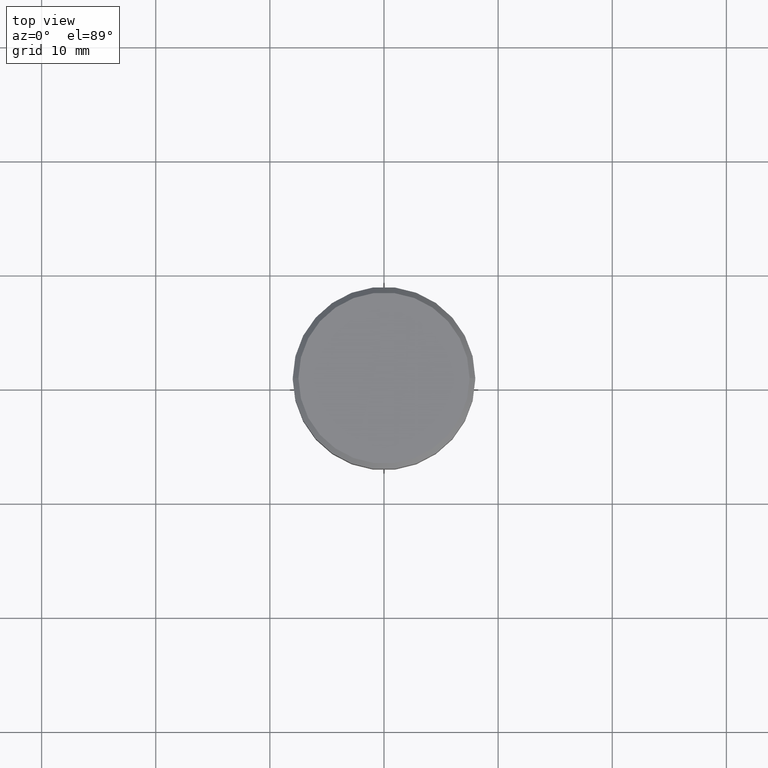
[diagram: clean part render]
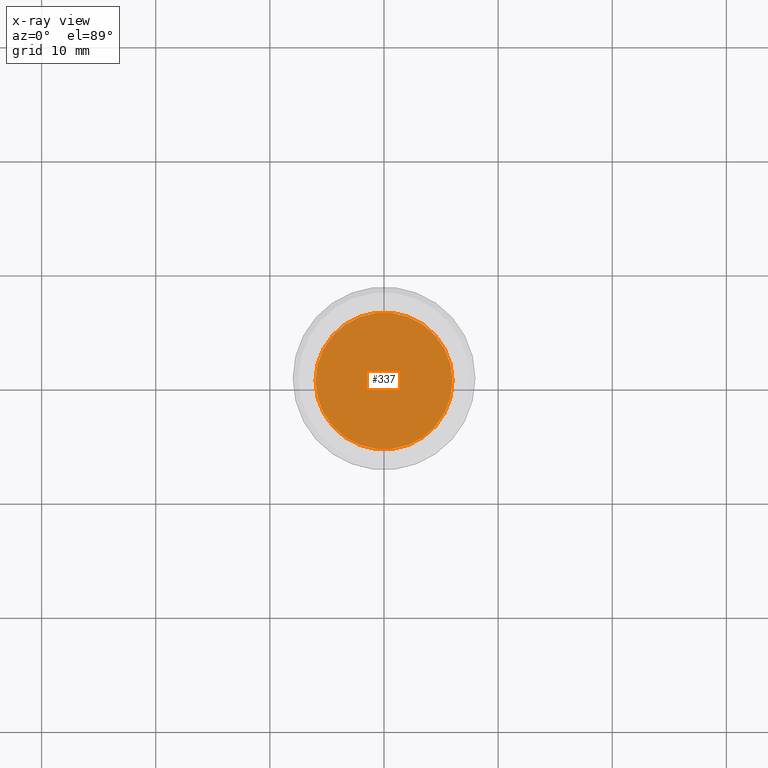
[diagram: x-ray — body ghosted, one internal face saturated and labeled with its STEP entity id]
A machine part, top view, then the same camera in x-ray: the body is ghosted and one INTERNAL B-rep face — a face not visible from any outside direction — is saturated and labeled: STEP entity #337.
In plain terms, the highlighted planar face has unit normal (0, 0, -1).
Its self-contained STEP definition (entity closure, byte-faithful):
#5 = EDGE_CURVE ( 'NONE', #756, #404, #766, .T. ) ;
#26 = AXIS2_PLACEMENT_3D ( 'NONE', #617, #214, #1023 ) ;
#54 = CARTESIAN_POINT ( 'NONE',  ( -6.000000000000000888, 7.347880794884120722E-16, -15.00000000000000000 ) ) ;
#60 = AXIS2_PLACEMENT_3D ( 'NONE', #694, #686, #1014 ) ;
#124 = CIRCLE ( 'NONE', #26, 6.000000000000000000 ) ;
#195 = FACE_OUTER_BOUND ( 'NONE', #361, .T. ) ;
#213 = CARTESIAN_POINT ( 'NONE',  ( 6.000000000000000000, 0.000000000000000000, -15.00000000000000000 ) ) ;
#214 = DIRECTION ( 'NONE',  ( -0.000000000000000000, -0.000000000000000000, 1.000000000000000000 ) ) ;
#256 = DIRECTION ( 'NONE',  ( 1.000000000000000000, 0.000000000000000000, 0.000000000000000000 ) ) ;
#337 = ADVANCED_FACE ( 'NONE', ( #195 ), #353, .F. ) ;
#341 = AXIS2_PLACEMENT_3D ( 'NONE', #896, #991, #256 ) ;
#353 = PLANE ( 'NONE',  #60 ) ;
#361 = EDGE_LOOP ( 'NONE', ( #972, #1037 ) ) ;
#404 = VERTEX_POINT ( 'NONE', #54 ) ;
#617 = CARTESIAN_POINT ( 'NONE',  ( 0.000000000000000000, 0.000000000000000000, -15.00000000000000000 ) ) ;
#686 = DIRECTION ( 'NONE',  ( 0.000000000000000000, 0.000000000000000000, -1.000000000000000000 ) ) ;
#694 = CARTESIAN_POINT ( 'NONE',  ( 0.000000000000000000, -4.336808689942017736E-15, -15.00000000000000000 ) ) ;
#756 = VERTEX_POINT ( 'NONE', #213 ) ;
#766 = CIRCLE ( 'NONE', #341, 6.000000000000000000 ) ;
#896 = CARTESIAN_POINT ( 'NONE',  ( 0.000000000000000000, 0.000000000000000000, -15.00000000000000000 ) ) ;
#972 = ORIENTED_EDGE ( 'NONE', *, *, #5, .T. ) ;
#991 = DIRECTION ( 'NONE',  ( -0.000000000000000000, -0.000000000000000000, 1.000000000000000000 ) ) ;
#1014 = DIRECTION ( 'NONE',  ( -1.000000000000000000, 0.000000000000000000, -0.000000000000000000 ) ) ;
#1023 = DIRECTION ( 'NONE',  ( 1.000000000000000000, 0.000000000000000000, 0.000000000000000000 ) ) ;
#1037 = ORIENTED_EDGE ( 'NONE', *, *, #1041, .T. ) ;
#1041 = EDGE_CURVE ( 'NONE', #404, #756, #124, .T. ) ;